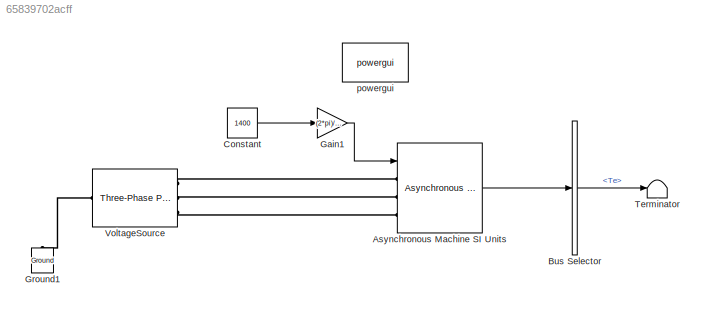
MODEL slx_65839702acff
KIND model
CONFIG AbsTol = auto
CONFIG EnableMultiTasking = on
CONFIG FixedStep = auto
CONFIG MaxStep = 10e-6
CONFIG MinStep = auto
CONFIG RelTol = 1e-4
CONFIG SampleTimeConstraint = Unconstrained
CONFIG Solver = ode23tb
CONFIG SolverName = ode23tb
CONFIG StartTime = 0.0
CONFIG StopTime = 2
BLOCK [Reference] Asynchronous Machine SI Units  REF=powerlib/Machines/Asynchronous Machine
SI Units
  AttributesFormatString = \n
  Ports = [1, 1, 0, 0, 0, 3]
  SourceBlock = powerlib/Machines/Asynchronous Machine\nSI Units
  SourceProductBaseCode = PS
  SourceProductName = Simscape Electrical
  SourceType = Asynchronous Machine
BLOCK [BusSelector] Bus Selector
  OutputAsBus = off
  OutputSignals = Te
  Ports = [1, 1]
BLOCK [Constant] Constant
  Value = 1400
BLOCK [Gain] Gain1
  Gain = (2*pi)/60
  OutDataTypeStr = Inherit: Inherit via internal rule
  ParamDataTypeStr = Inherit: Inherit via internal rule
  SaturateOnIntegerOverflow = off
BLOCK [Reference] Ground1  REF=powerlib/Elements/Ground
  Ports = [0, 0, 0, 0, 0, 1]
  SourceBlock = powerlib/Elements/Ground
  SourceProductBaseCode = PS
  SourceProductName = Simscape Electrical
  SourceType = Ground
BLOCK [Terminator] Terminator
BLOCK [Reference] VoltageSource  REF=powerlib/Electrical
Sources/Three-Phase
Programmable
Voltage Source
  Ports = [0, 0, 0, 0, 0, 1, 3]
  SourceBlock = powerlib/Electrical\nSources/Three-Phase\nProgrammable\nVoltage Source
  SourceProductBaseCode = PS
  SourceProductName = Simscape Electrical
  SourceType = Three-Phase Programmable Voltage Source
BLOCK [Reference] powergui  REF=powerlib/powergui
  Ports = []
  Priority = 1
  SourceBlock = powerlib/powergui
  SourceProductBaseCode = PS
  SourceProductName = Simscape Electrical
  SourceType = PSB option menu block
LINE Asynchronous Machine SI Units:1 -> Bus Selector:1
LINE Bus Selector:1 -> Terminator:1
LINE Constant:1 -> Gain1:1
LINE Gain1:1 -> Asynchronous Machine SI Units:1
PLINE Asynchronous Machine SI Units:LConn1 -- VoltageSource:RConn1
PLINE Asynchronous Machine SI Units:LConn2 -- VoltageSource:RConn2
PLINE Asynchronous Machine SI Units:LConn3 -- VoltageSource:RConn3
PLINE Ground1:LConn1 -- VoltageSource:LConn1
